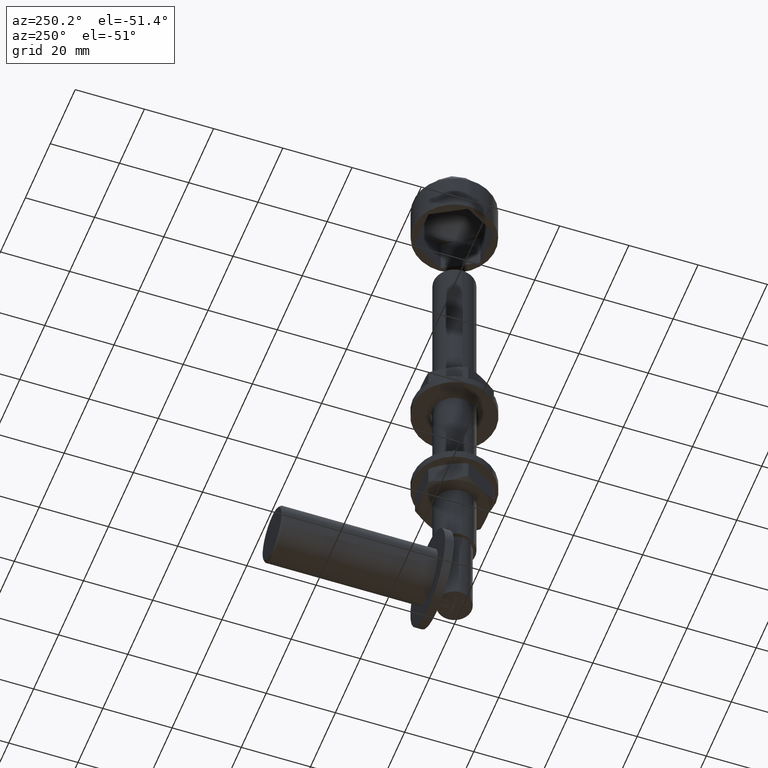
[diagram: clean part render]
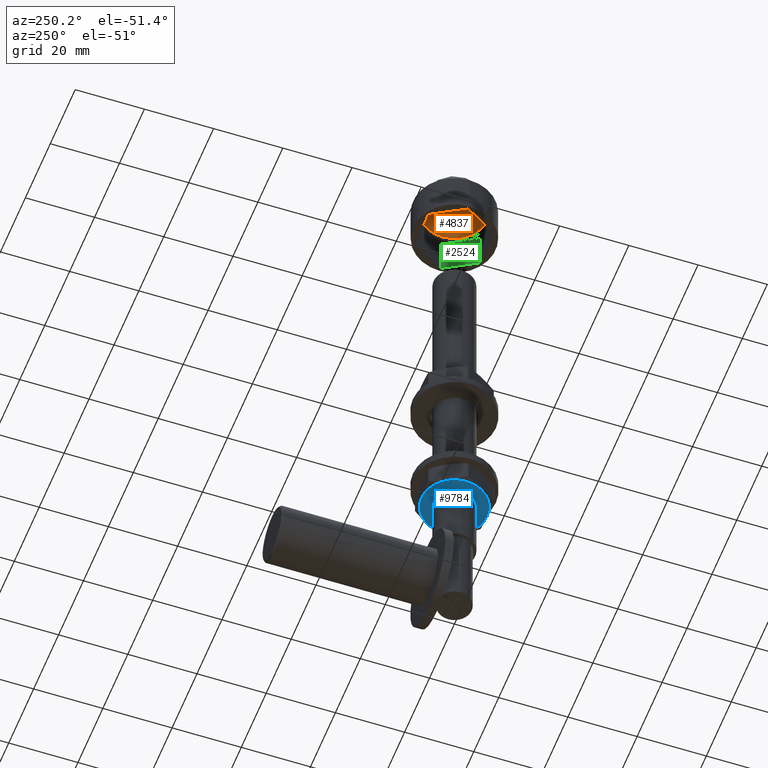
[diagram: same view with three faces highlighted in distinct colors, each labeled with its STEP entity id]
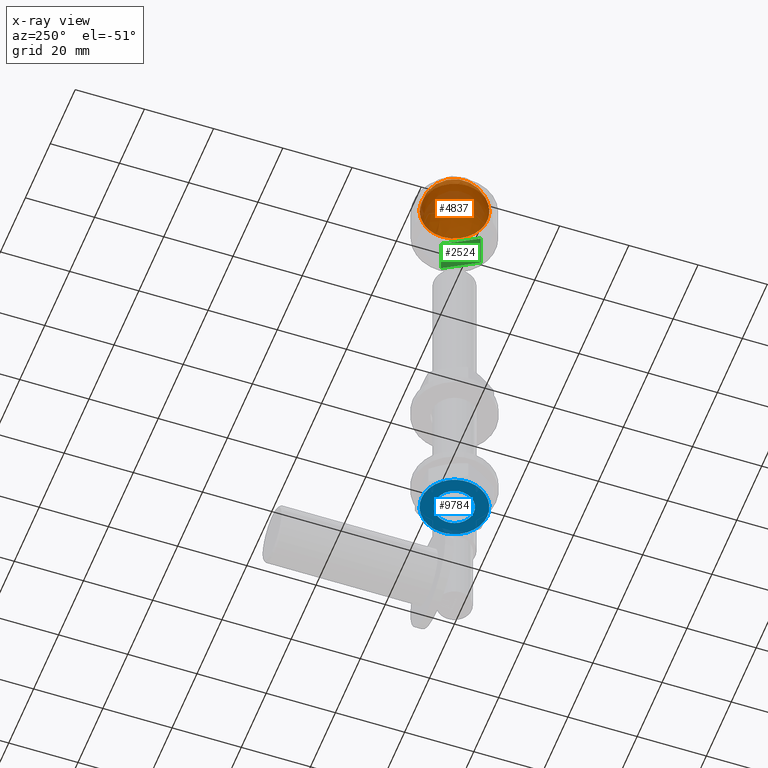
[diagram: x-ray of the same camera — body ghosted, the three highlighted faces saturated]
A machine part, auxiliary view with three faces highlighted in distinct colors.
The next image is the same camera in x-ray (body ghosted, the three faces saturated) — at least one of them is partly hidden behind the body in this view.
Their STEP definitions:

[orange] entity #4837 — the highlighted spherical surface has radius 9.5805 mm.
#2646 = FACE_OUTER_BOUND ( 'NONE', #4874, .T. ) ;
#3341 = AXIS2_PLACEMENT_3D ( 'NONE', #7336, #14392, #7445 ) ;
#3351 = VERTEX_POINT ( 'NONE', #11612 ) ;
#4266 = EDGE_CURVE ( 'NONE', #3351, #3351, #8166, .T. ) ;
#4514 = ORIENTED_EDGE ( 'NONE', *, *, #4266, .F. ) ;
#4837 = ADVANCED_FACE ( 'NONE', ( #2646 ), #11601, .F. ) ;
#4874 = EDGE_LOOP ( 'NONE', ( #4514 ) ) ;
#7336 = CARTESIAN_POINT ( 'NONE',  ( 2.159320426405904822E-15, 11.90218495934958831, 0.000000000000000000 ) ) ;
#7445 = DIRECTION ( 'NONE',  ( -1.000000000000000000, -3.652049423109069799E-16, 0.000000000000000000 ) ) ;
#8166 = CIRCLE ( 'NONE', #3341, 9.499999999999994671 ) ;
#8414 = DIRECTION ( 'NONE',  ( 0.000000000000000000, 0.000000000000000000, -1.000000000000000000 ) ) ;
#8503 = DIRECTION ( 'NONE',  ( 1.000000000000000000, 3.621380549888468466E-16, 0.000000000000000000 ) ) ;
#8620 = AXIS2_PLACEMENT_3D ( 'NONE', #12043, #8414, #8503 ) ;
#11601 = SPHERICAL_SURFACE ( 'NONE', #8620, 9.580453929539292091 ) ;
#11612 = CARTESIAN_POINT ( 'NONE',  ( -9.499999999999992895, 11.90218495934958476, 0.000000000000000000 ) ) ;
#12043 = CARTESIAN_POINT ( 'NONE',  ( 2.524354896707237777E-26, 10.66319444444444997, 0.000000000000000000 ) ) ;
#14392 = DIRECTION ( 'NONE',  ( -4.435642450600503880E-16, 1.000000000000000000, -0.000000000000000000 ) ) ;

[blue] entity #9784 — the highlighted planar face has unit normal (0, 0, 1).
#97 = AXIS2_PLACEMENT_3D ( 'NONE', #10900, #8525, #5057 ) ;
#128 = DIRECTION ( 'NONE',  ( 0.000000000000000000, 1.000000000000000000, 0.000000000000000000 ) ) ;
#234 = EDGE_LOOP ( 'NONE', ( #3791, #7801, #13854, #3705, #10856, #8631 ) ) ;
#670 = FACE_OUTER_BOUND ( 'NONE', #234, .T. ) ;
#683 = AXIS2_PLACEMENT_3D ( 'NONE', #2098, #13745, #3290 ) ;
#961 = CIRCLE ( 'NONE', #683, 9.499999999999998224 ) ;
#1234 = CARTESIAN_POINT ( 'NONE',  ( 0.000000000000000000, -3.500000000000000000, 0.000000000000000000 ) ) ;
#1405 = FACE_BOUND ( 'NONE', #1691, .T. ) ;
#1691 = EDGE_LOOP ( 'NONE', ( #11035 ) ) ;
#1801 = EDGE_CURVE ( 'NONE', #5954, #5056, #9990, .T. ) ;
#1929 = CARTESIAN_POINT ( 'NONE',  ( 0.000000000000000000, -3.500000000000000000, 0.000000000000000000 ) ) ;
#1973 = CIRCLE ( 'NONE', #11038, 9.499999999999998224 ) ;
#2066 = CARTESIAN_POINT ( 'NONE',  ( -8.227241335952165002, -3.500000000000000000, -4.750000000000000000 ) ) ;
#2098 = CARTESIAN_POINT ( 'NONE',  ( 0.000000000000000000, -3.500000000000000000, 0.000000000000000000 ) ) ;
#2261 = EDGE_CURVE ( 'NONE', #3916, #8340, #9647, .T. ) ;
#2495 = EDGE_CURVE ( 'NONE', #13853, #3916, #1973, .T. ) ;
#3104 = DIRECTION ( 'NONE',  ( 0.000000000000000000, 1.000000000000000000, 0.000000000000000000 ) ) ;
#3157 = AXIS2_PLACEMENT_3D ( 'NONE', #5077, #14323, #7321 ) ;
#3290 = DIRECTION ( 'NONE',  ( 0.000000000000000000, 0.000000000000000000, 1.000000000000000000 ) ) ;
#3372 = AXIS2_PLACEMENT_3D ( 'NONE', #1234, #14284, #7225 ) ;
#3416 = CIRCLE ( 'NONE', #14385, 5.600000000000000533 ) ;
#3705 = ORIENTED_EDGE ( 'NONE', *, *, #1801, .T. ) ;
#3734 = DIRECTION ( 'NONE',  ( -0.000000000000000000, -1.000000000000000000, -0.000000000000000000 ) ) ;
#3791 = ORIENTED_EDGE ( 'NONE', *, *, #2261, .T. ) ;
#3916 = VERTEX_POINT ( 'NONE', #11517 ) ;
#4582 = CIRCLE ( 'NONE', #3157, 9.499999999999998224 ) ;
#4649 = AXIS2_PLACEMENT_3D ( 'NONE', #12938, #128, #14078 ) ;
#5056 = VERTEX_POINT ( 'NONE', #11887 ) ;
#5057 = DIRECTION ( 'NONE',  ( 0.000000000000000000, 0.000000000000000000, -1.000000000000000000 ) ) ;
#5077 = CARTESIAN_POINT ( 'NONE',  ( 0.000000000000000000, -3.500000000000000000, 0.000000000000000000 ) ) ;
#5160 = DIRECTION ( 'NONE',  ( 0.000000000000000000, 0.000000000000000000, 1.000000000000000000 ) ) ;
#5594 = CIRCLE ( 'NONE', #97, 9.499999999999998224 ) ;
#5954 = VERTEX_POINT ( 'NONE', #2066 ) ;
#6614 = DIRECTION ( 'NONE',  ( -0.000000000000000000, -1.000000000000000000, -0.000000000000000000 ) ) ;
#7225 = DIRECTION ( 'NONE',  ( 1.776356839400250465E-15, 0.000000000000000000, 1.000000000000000000 ) ) ;
#7321 = DIRECTION ( 'NONE',  ( 0.000000000000000000, 0.000000000000000000, 1.000000000000000000 ) ) ;
#7801 = ORIENTED_EDGE ( 'NONE', *, *, #14813, .T. ) ;
#7826 = DIRECTION ( 'NONE',  ( -3.552713678800500929E-15, 0.000000000000000000, 1.000000000000000000 ) ) ;
#8157 = CARTESIAN_POINT ( 'NONE',  ( 8.227241335952163226, -3.500000000000000000, -4.750000000000003553 ) ) ;
#8340 = VERTEX_POINT ( 'NONE', #9553 ) ;
#8385 = EDGE_CURVE ( 'NONE', #10675, #5954, #4582, .T. ) ;
#8525 = DIRECTION ( 'NONE',  ( 0.000000000000000000, -1.000000000000000000, 0.000000000000000000 ) ) ;
#8631 = ORIENTED_EDGE ( 'NONE', *, *, #2495, .T. ) ;
#8865 = AXIS2_PLACEMENT_3D ( 'NONE', #12281, #6614, #7826 ) ;
#9517 = PLANE ( 'NONE',  #4649 ) ;
#9553 = CARTESIAN_POINT ( 'NONE',  ( 0.000000000000000000, -3.500000000000000000, 9.499999999999998224 ) ) ;
#9647 = CIRCLE ( 'NONE', #8865, 9.499999999999998224 ) ;
#9730 = VERTEX_POINT ( 'NONE', #10453 ) ;
#9784 = ADVANCED_FACE ( 'NONE', ( #1405, #670 ), #9517, .F. ) ;
#9990 = CIRCLE ( 'NONE', #3372, 9.499999999999998224 ) ;
#10453 = CARTESIAN_POINT ( 'NONE',  ( 0.000000000000000000, -3.500000000000000000, 5.600000000000000533 ) ) ;
#10675 = VERTEX_POINT ( 'NONE', #15125 ) ;
#10856 = ORIENTED_EDGE ( 'NONE', *, *, #13565, .T. ) ;
#10900 = CARTESIAN_POINT ( 'NONE',  ( 0.000000000000000000, -3.500000000000000000, 0.000000000000000000 ) ) ;
#11035 = ORIENTED_EDGE ( 'NONE', *, *, #12066, .T. ) ;
#11038 = AXIS2_PLACEMENT_3D ( 'NONE', #11780, #3734, #5160 ) ;
#11210 = DIRECTION ( 'NONE',  ( 0.000000000000000000, 0.000000000000000000, 1.000000000000000000 ) ) ;
#11517 = CARTESIAN_POINT ( 'NONE',  ( 8.227241335952165002, -3.500000000000000000, 4.749999999999998224 ) ) ;
#11780 = CARTESIAN_POINT ( 'NONE',  ( 0.000000000000000000, -3.500000000000000000, 0.000000000000000000 ) ) ;
#11887 = CARTESIAN_POINT ( 'NONE',  ( -1.502314598737159623E-15, -3.500000000000000000, -9.499999999999998224 ) ) ;
#12066 = EDGE_CURVE ( 'NONE', #9730, #9730, #3416, .T. ) ;
#12281 = CARTESIAN_POINT ( 'NONE',  ( 0.000000000000000000, -3.500000000000000000, 0.000000000000000000 ) ) ;
#12938 = CARTESIAN_POINT ( 'NONE',  ( 0.000000000000000000, -3.500000000000000000, 0.000000000000000000 ) ) ;
#13565 = EDGE_CURVE ( 'NONE', #5056, #13853, #5594, .T. ) ;
#13745 = DIRECTION ( 'NONE',  ( -0.000000000000000000, -1.000000000000000000, -0.000000000000000000 ) ) ;
#13853 = VERTEX_POINT ( 'NONE', #8157 ) ;
#13854 = ORIENTED_EDGE ( 'NONE', *, *, #8385, .T. ) ;
#14078 = DIRECTION ( 'NONE',  ( 0.000000000000000000, -0.000000000000000000, 1.000000000000000000 ) ) ;
#14284 = DIRECTION ( 'NONE',  ( -0.000000000000000000, -1.000000000000000000, -0.000000000000000000 ) ) ;
#14323 = DIRECTION ( 'NONE',  ( -0.000000000000000000, -1.000000000000000000, -0.000000000000000000 ) ) ;
#14385 = AXIS2_PLACEMENT_3D ( 'NONE', #1929, #3104, #11210 ) ;
#14813 = EDGE_CURVE ( 'NONE', #8340, #10675, #961, .T. ) ;
#15125 = CARTESIAN_POINT ( 'NONE',  ( -8.227241335952165002, -3.500000000000000000, 4.749999999999999112 ) ) ;

[green] entity #2524 — the highlighted planar face has unit normal (0.866, -0.5, -0).
#565 = AXIS2_PLACEMENT_3D ( 'NONE', #8006, #12582, #10291 ) ;
#652 = DIRECTION ( 'NONE',  ( -0.4999999999999998335, -0.000000000000000000, 0.8660254037844387076 ) ) ;
#695 = LINE ( 'NONE', #13006, #5658 ) ;
#1084 = CARTESIAN_POINT ( 'NONE',  ( 10.96965511460288845, 0.000000000000000000, -2.289671540841869901E-16 ) ) ;
#1278 = EDGE_LOOP ( 'NONE', ( #5005, #9718, #6316, #2084, #3930 ) ) ;
#1755 = VERTEX_POINT ( 'NONE', #1084 ) ;
#2084 = ORIENTED_EDGE ( 'NONE', *, *, #2273, .F. ) ;
#2162 = LINE ( 'NONE', #14833, #15135 ) ;
#2188 = EDGE_CURVE ( 'NONE', #5230, #1755, #695, .T. ) ;
#2273 = EDGE_CURVE ( 'NONE', #5230, #6551, #10555, .T. ) ;
#2524 = ADVANCED_FACE ( 'NONE', ( #6951 ), #14959, .F. ) ;
#2536 = CARTESIAN_POINT ( 'NONE',  ( 10.96965511460288845, 10.50000000000000000, -2.289671540841869901E-16 ) ) ;
#3234 = CARTESIAN_POINT ( 'NONE',  ( 10.96965511460288845, 10.50000000000000000, -2.289671540841869901E-16 ) ) ;
#3638 = DIRECTION ( 'NONE',  ( -0.000000000000000000, -1.000000000000000000, -0.000000000000000000 ) ) ;
#3930 = ORIENTED_EDGE ( 'NONE', *, *, #2188, .T. ) ;
#4317 = DIRECTION ( 'NONE',  ( -0.000000000000000000, -1.000000000000000000, -0.000000000000000000 ) ) ;
#4636 = CARTESIAN_POINT ( 'NONE',  ( 10.96965511460288845, 0.000000000000000000, -2.289671540841869901E-16 ) ) ;
#5005 = ORIENTED_EDGE ( 'NONE', *, *, #11084, .T. ) ;
#5230 = VERTEX_POINT ( 'NONE', #3234 ) ;
#5658 = VECTOR ( 'NONE', #3638, 1000.000000000000000 ) ;
#5814 = LINE ( 'NONE', #4636, #6350 ) ;
#6079 = DIRECTION ( 'NONE',  ( -0.4999999999999998335, -0.000000000000000000, 0.8660254037844387076 ) ) ;
#6316 = ORIENTED_EDGE ( 'NONE', *, *, #11730, .F. ) ;
#6350 = VECTOR ( 'NONE', #12818, 1000.000000000000000 ) ;
#6551 = VERTEX_POINT ( 'NONE', #9390 ) ;
#6951 = FACE_OUTER_BOUND ( 'NONE', #1278, .T. ) ;
#8006 = CARTESIAN_POINT ( 'NONE',  ( 10.96965511460288845, 10.50000000000000000, -2.289671540841869901E-16 ) ) ;
#8572 = VERTEX_POINT ( 'NONE', #14937 ) ;
#8573 = EDGE_CURVE ( 'NONE', #12715, #8572, #2162, .T. ) ;
#9390 = CARTESIAN_POINT ( 'NONE',  ( 8.227241335952168555, 10.50000000000000000, 4.749999999999996447 ) ) ;
#9718 = ORIENTED_EDGE ( 'NONE', *, *, #8573, .F. ) ;
#10111 = CARTESIAN_POINT ( 'NONE',  ( 10.96965511460288845, 10.50000000000000000, -2.289671540841869901E-16 ) ) ;
#10291 = DIRECTION ( 'NONE',  ( 0.4999999999999998335, 0.000000000000000000, -0.8660254037844387076 ) ) ;
#10555 = LINE ( 'NONE', #10111, #15142 ) ;
#10768 = CARTESIAN_POINT ( 'NONE',  ( 5.484827557301445999, 10.50000000000000000, 9.500000000000000000 ) ) ;
#11084 = EDGE_CURVE ( 'NONE', #1755, #8572, #5814, .T. ) ;
#11730 = EDGE_CURVE ( 'NONE', #6551, #12715, #14929, .T. ) ;
#11777 = VECTOR ( 'NONE', #6079, 1000.000000000000000 ) ;
#12582 = DIRECTION ( 'NONE',  ( 0.8660254037844387076, -0.000000000000000000, 0.4999999999999998335 ) ) ;
#12715 = VERTEX_POINT ( 'NONE', #10768 ) ;
#12818 = DIRECTION ( 'NONE',  ( -0.4999999999999998335, -0.000000000000000000, 0.8660254037844387076 ) ) ;
#13006 = CARTESIAN_POINT ( 'NONE',  ( 10.96965511460288845, 10.50000000000000000, -2.289671540841869901E-16 ) ) ;
#14833 = CARTESIAN_POINT ( 'NONE',  ( 5.484827557301445999, 10.50000000000000000, 9.500000000000000000 ) ) ;
#14929 = LINE ( 'NONE', #2536, #11777 ) ;
#14937 = CARTESIAN_POINT ( 'NONE',  ( 5.484827557301445999, -0.000000000000000000, 9.500000000000000000 ) ) ;
#14959 = PLANE ( 'NONE',  #565 ) ;
#15135 = VECTOR ( 'NONE', #4317, 1000.000000000000000 ) ;
#15142 = VECTOR ( 'NONE', #652, 1000.000000000000000 ) ;